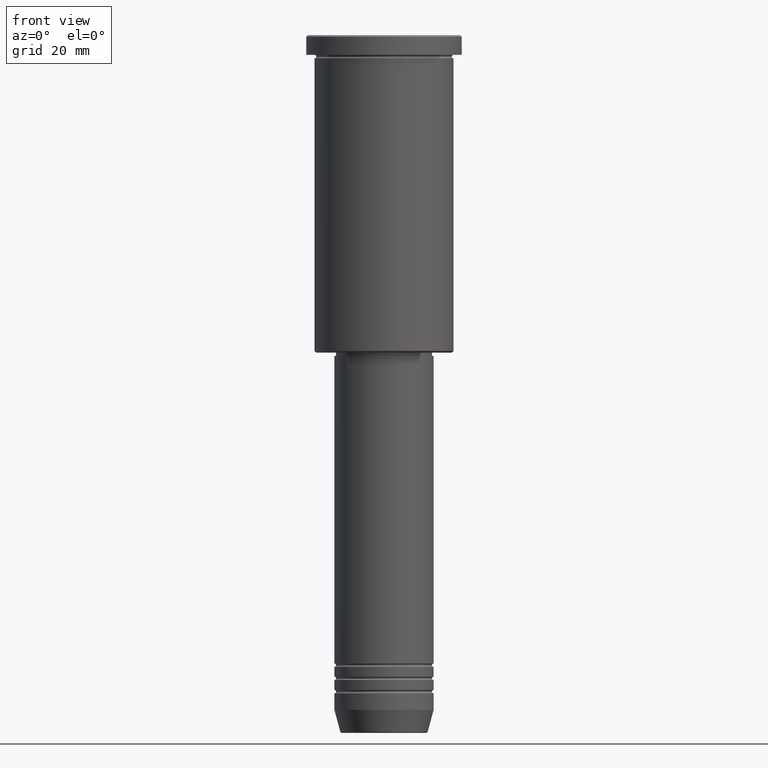
[diagram: clean part render]
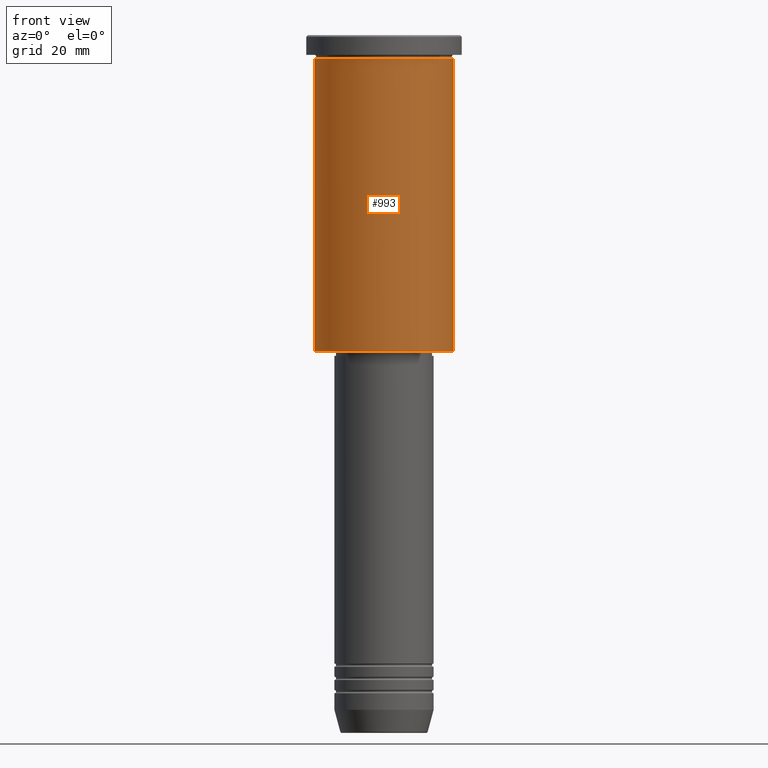
[diagram: same view with one face highlighted and labeled with its STEP entity id]
A machine part, front view. The second image highlights one B-rep face of the part: STEP entity #993.
In plain terms, the highlighted cylindrical surface (partial cylindrical patch) has radius 21 mm, axis along (-0, -0, 1).
Its self-contained STEP definition (entity closure, byte-faithful):
#37 = EDGE_CURVE ( 'NONE', #331, #1094, #1105, .T. ) ;
#55 = ORIENTED_EDGE ( 'NONE', *, *, #400, .F. ) ;
#115 = DIRECTION ( 'NONE',  ( -0.000000000000000000, -0.000000000000000000, 1.000000000000000000 ) ) ;
#136 = CARTESIAN_POINT ( 'NONE',  ( 21.00000000000000000, 0.000000000000000000, -6.999999999999993783 ) ) ;
#162 = ORIENTED_EDGE ( 'NONE', *, *, #368, .F. ) ;
#194 = EDGE_CURVE ( 'NONE', #1107, #331, #474, .T. ) ;
#220 = VECTOR ( 'NONE', #115, 1000.000000000000000 ) ;
#296 = CYLINDRICAL_SURFACE ( 'NONE', #342, 21.00000000000000000 ) ;
#314 = DIRECTION ( 'NONE',  ( -1.000000000000000000, 0.000000000000000000, 0.000000000000000000 ) ) ;
#324 = CARTESIAN_POINT ( 'NONE',  ( -21.00000000000000000, 2.571758278209441661E-15, -95.50000000000000000 ) ) ;
#331 = VERTEX_POINT ( 'NONE', #502 ) ;
#333 = CARTESIAN_POINT ( 'NONE',  ( 0.000000000000000000, 0.000000000000000000, -95.50000000000000000 ) ) ;
#340 = AXIS2_PLACEMENT_3D ( 'NONE', #333, #675, #314 ) ;
#342 = AXIS2_PLACEMENT_3D ( 'NONE', #673, #404, #838 ) ;
#368 = EDGE_CURVE ( 'NONE', #1107, #641, #1160, .T. ) ;
#378 = CIRCLE ( 'NONE', #1042, 21.00000000000000000 ) ;
#400 = EDGE_CURVE ( 'NONE', #641, #1094, #378, .T. ) ;
#404 = DIRECTION ( 'NONE',  ( -0.000000000000000000, -0.000000000000000000, 1.000000000000000000 ) ) ;
#474 = CIRCLE ( 'NONE', #340, 21.00000000000000000 ) ;
#502 = CARTESIAN_POINT ( 'NONE',  ( 21.00000000000000000, 0.000000000000000000, -95.50000000000000000 ) ) ;
#506 = CARTESIAN_POINT ( 'NONE',  ( -21.00000000000000000, 2.571758278209441661E-15, -6.999999999999993783 ) ) ;
#520 = ORIENTED_EDGE ( 'NONE', *, *, #37, .T. ) ;
#528 = ORIENTED_EDGE ( 'NONE', *, *, #194, .T. ) ;
#641 = VERTEX_POINT ( 'NONE', #506 ) ;
#673 = CARTESIAN_POINT ( 'NONE',  ( 0.000000000000000000, 0.000000000000000000, 0.000000000000000000 ) ) ;
#675 = DIRECTION ( 'NONE',  ( -0.000000000000000000, -0.000000000000000000, 1.000000000000000000 ) ) ;
#797 = EDGE_LOOP ( 'NONE', ( #162, #528, #520, #55 ) ) ;
#838 = DIRECTION ( 'NONE',  ( 1.000000000000000000, 0.000000000000000000, 0.000000000000000000 ) ) ;
#882 = DIRECTION ( 'NONE',  ( -0.000000000000000000, -0.000000000000000000, 1.000000000000000000 ) ) ;
#987 = DIRECTION ( 'NONE',  ( -0.000000000000000000, -0.000000000000000000, 1.000000000000000000 ) ) ;
#993 = ADVANCED_FACE ( 'NONE', ( #1018 ), #296, .T. ) ;
#998 = DIRECTION ( 'NONE',  ( 1.000000000000000000, 0.000000000000000000, 0.000000000000000000 ) ) ;
#1018 = FACE_OUTER_BOUND ( 'NONE', #797, .T. ) ;
#1022 = CARTESIAN_POINT ( 'NONE',  ( 21.00000000000000000, 0.000000000000000000, 0.000000000000000000 ) ) ;
#1042 = AXIS2_PLACEMENT_3D ( 'NONE', #1092, #882, #998 ) ;
#1092 = CARTESIAN_POINT ( 'NONE',  ( 0.000000000000000000, 0.000000000000000000, -6.999999999999993783 ) ) ;
#1094 = VERTEX_POINT ( 'NONE', #136 ) ;
#1095 = CARTESIAN_POINT ( 'NONE',  ( -21.00000000000000000, 2.571758278209441661E-15, 0.000000000000000000 ) ) ;
#1100 = VECTOR ( 'NONE', #987, 1000.000000000000000 ) ;
#1105 = LINE ( 'NONE', #1022, #220 ) ;
#1107 = VERTEX_POINT ( 'NONE', #324 ) ;
#1160 = LINE ( 'NONE', #1095, #1100 ) ;